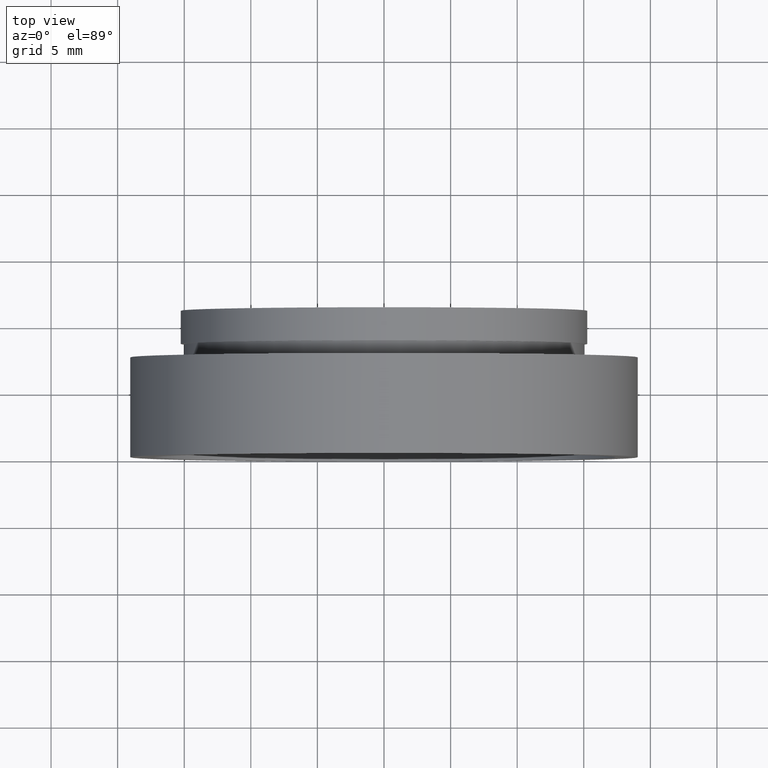
[diagram: clean part render]
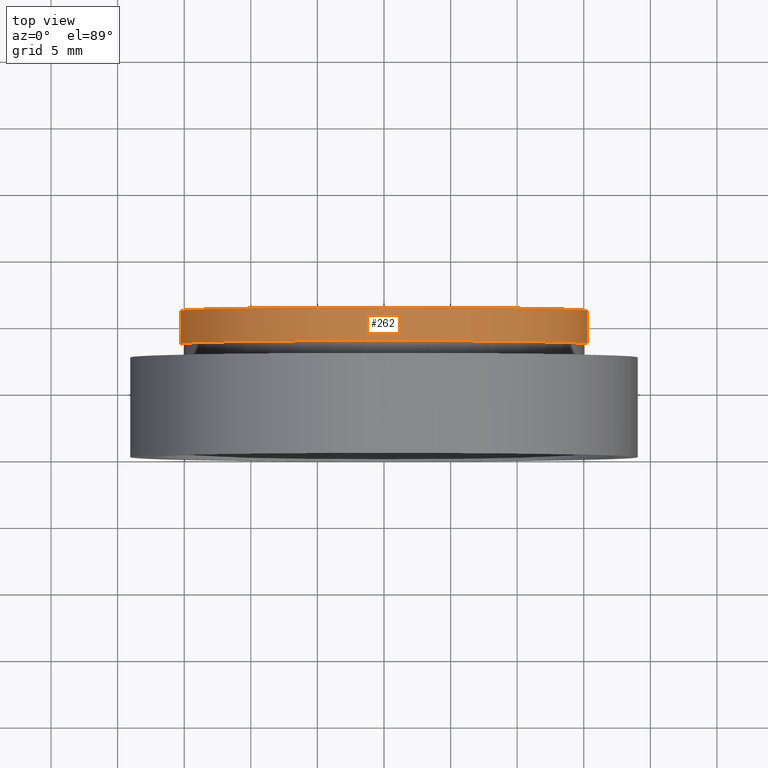
[diagram: same view with one face highlighted and labeled with its STEP entity id]
A machine part, top view. The second image highlights one B-rep face of the part: STEP entity #262.
In plain terms, the highlighted cylindrical surface (partial cylindrical patch) has radius 15.26 mm, axis along (-0, 1, -0).
Its self-contained STEP definition (entity closure, byte-faithful):
#24 = DIRECTION ( 'NONE',  ( -1.224646799147351000E-016, 1.000000000000000000, -0.0000000000000000000 ) ) ;
#44 = VECTOR ( 'NONE', #512, 1000.000000000000000 ) ;
#49 = CARTESIAN_POINT ( 'NONE',  ( -15.25999999999999800, 8.499999999999994700, 0.0000000000000000000 ) ) ;
#58 = CARTESIAN_POINT ( 'NONE',  ( 1.026991039163387900E-015, 8.499999999999996400, 0.0000000000000000000 ) ) ;
#64 = DIRECTION ( 'NONE',  ( -1.224646799147351000E-016, 1.000000000000000000, -0.0000000000000000000 ) ) ;
#68 = ORIENTED_EDGE ( 'NONE', *, *, #485, .F. ) ;
#90 = VECTOR ( 'NONE', #64, 1000.000000000000000 ) ;
#107 = CARTESIAN_POINT ( 'NONE',  ( -15.26000000000000000, 16.88601823708207300, 0.0000000000000000000 ) ) ;
#110 = EDGE_CURVE ( 'NONE', #132, #407, #169, .T. ) ;
#129 = CIRCLE ( 'NONE', #576, 15.26000000000000000 ) ;
#132 = VERTEX_POINT ( 'NONE', #432 ) ;
#160 = DIRECTION ( 'NONE',  ( -1.224646799147351000E-016, 1.000000000000000000, -0.0000000000000000000 ) ) ;
#169 = LINE ( 'NONE', #196, #44 ) ;
#196 = CARTESIAN_POINT ( 'NONE',  ( 15.26000000000000000, 16.88601823708208000, 1.868811015498860900E-015 ) ) ;
#207 = CARTESIAN_POINT ( 'NONE',  ( 0.0000000000000000000, 16.88601823708207700, 0.0000000000000000000 ) ) ;
#236 = EDGE_LOOP ( 'NONE', ( #561, #565, #333, #68 ) ) ;
#262 = ADVANCED_FACE ( 'NONE', ( #312 ), #555, .T. ) ;
#283 = AXIS2_PLACEMENT_3D ( 'NONE', #58, #423, #289 ) ;
#289 = DIRECTION ( 'NONE',  ( -1.000000000000000000, -1.136778162501184300E-016, 0.0000000000000000000 ) ) ;
#312 = FACE_OUTER_BOUND ( 'NONE', #236, .T. ) ;
#319 = CARTESIAN_POINT ( 'NONE',  ( 15.26000000000000000, 11.00000000000000000, 1.868811015498860900E-015 ) ) ;
#320 = AXIS2_PLACEMENT_3D ( 'NONE', #207, #160, #480 ) ;
#333 = ORIENTED_EDGE ( 'NONE', *, *, #557, .F. ) ;
#378 = VERTEX_POINT ( 'NONE', #49 ) ;
#407 = VERTEX_POINT ( 'NONE', #319 ) ;
#423 = DIRECTION ( 'NONE',  ( -1.224646799147351000E-016, 1.000000000000000000, -0.0000000000000000000 ) ) ;
#432 = CARTESIAN_POINT ( 'NONE',  ( 15.26000000000000300, 8.499999999999998200, 1.868811015498861300E-015 ) ) ;
#480 = DIRECTION ( 'NONE',  ( -1.000000000000000000, -2.273556325002368600E-016, 0.0000000000000000000 ) ) ;
#485 = EDGE_CURVE ( 'NONE', #378, #531, #619, .T. ) ;
#512 = DIRECTION ( 'NONE',  ( -1.224646799147351000E-016, 1.000000000000000000, -0.0000000000000000000 ) ) ;
#513 = CARTESIAN_POINT ( 'NONE',  ( -15.26000000000000000, 10.99999999999999600, 0.0000000000000000000 ) ) ;
#514 = EDGE_CURVE ( 'NONE', #378, #132, #591, .T. ) ;
#531 = VERTEX_POINT ( 'NONE', #513 ) ;
#555 = CYLINDRICAL_SURFACE ( 'NONE', #320, 15.26000000000000000 ) ;
#557 = EDGE_CURVE ( 'NONE', #531, #407, #129, .T. ) ;
#561 = ORIENTED_EDGE ( 'NONE', *, *, #514, .T. ) ;
#565 = ORIENTED_EDGE ( 'NONE', *, *, #110, .T. ) ;
#576 = AXIS2_PLACEMENT_3D ( 'NONE', #590, #24, #594 ) ;
#590 = CARTESIAN_POINT ( 'NONE',  ( 7.208293393765500500E-016, 10.99999999999999800, 0.0000000000000000000 ) ) ;
#591 = CIRCLE ( 'NONE', #283, 15.26000000000000000 ) ;
#594 = DIRECTION ( 'NONE',  ( -1.000000000000000000, -1.136778162501184300E-016, 0.0000000000000000000 ) ) ;
#619 = LINE ( 'NONE', #107, #90 ) ;